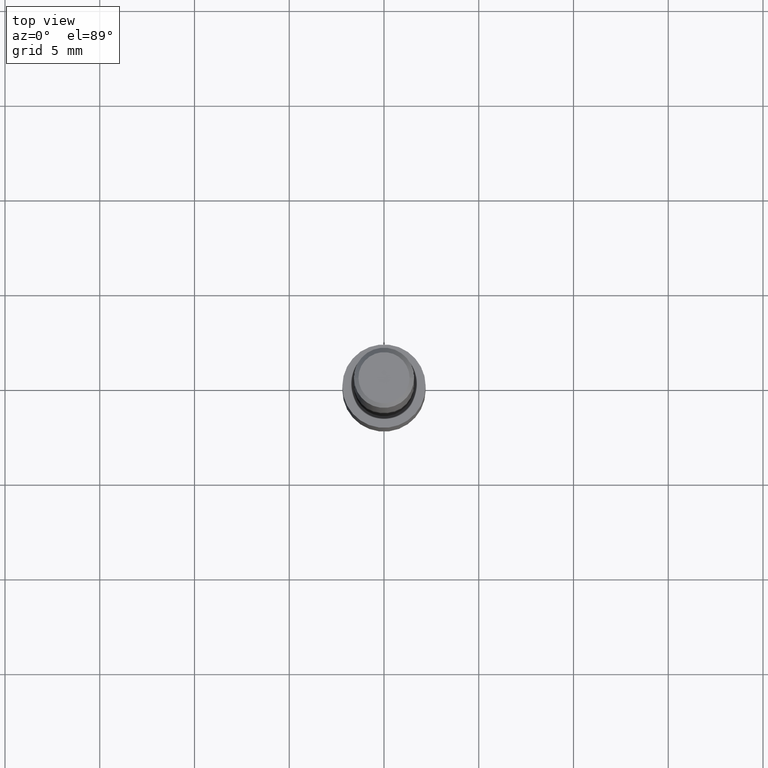
[diagram: clean part render]
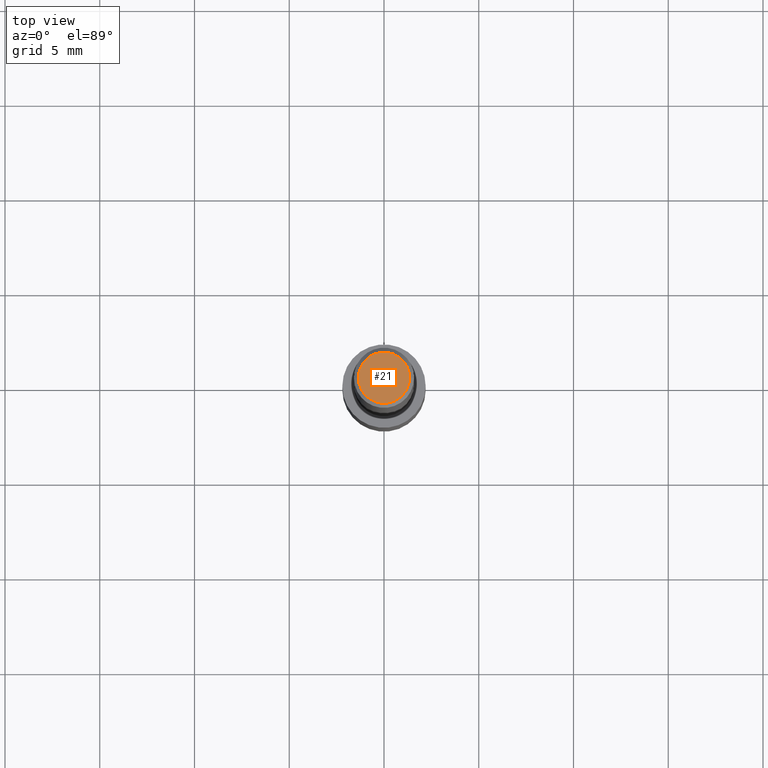
[diagram: same view with one face highlighted and labeled with its STEP entity id]
A machine part, top view. The second image highlights one B-rep face of the part: STEP entity #21.
In plain terms, the highlighted planar face has unit normal (0, -0, -1).
Its self-contained STEP definition (entity closure, byte-faithful):
#7 = EDGE_LOOP ( 'NONE', ( #31, #33 ) ) ;
#20 = CARTESIAN_POINT ( 'NONE',  ( -7.487088864773345706E-50, 1.068957861474247695E-35, 3.061616997868395197E-21 ) ) ;
#21 = ADVANCED_FACE ( 'NONE', ( #43 ), #201, .F. ) ;
#31 = ORIENTED_EDGE ( 'NONE', *, *, #213, .T. ) ;
#33 = ORIENTED_EDGE ( 'NONE', *, *, #51, .T. ) ;
#43 = FACE_OUTER_BOUND ( 'NONE', #7, .T. ) ;
#51 = EDGE_CURVE ( 'NONE', #63, #134, #61, .T. ) ;
#61 = CIRCLE ( 'NONE', #249, 0.05312499999999999861 ) ;
#62 = AXIS2_PLACEMENT_3D ( 'NONE', #127, #148, #273 ) ;
#63 = VERTEX_POINT ( 'NONE', #77 ) ;
#75 = DIRECTION ( 'NONE',  ( 1.000000000000000000, -6.982962677686266711E-15, 4.876176628004948512E-29 ) ) ;
#77 = CARTESIAN_POINT ( 'NONE',  ( 0.05312499999999999861, -4.129888592719939842E-16, 3.061617000609493422E-21 ) ) ;
#120 = CARTESIAN_POINT ( 'NONE',  ( -3.743544432386672853E-50, 5.344789307371238476E-36, 1.530808498934197599E-21 ) ) ;
#127 = CARTESIAN_POINT ( 'NONE',  ( -7.487088864773345706E-50, 1.068957861474247695E-35, 3.061616997868395197E-21 ) ) ;
#134 = VERTEX_POINT ( 'NONE', #234 ) ;
#142 = AXIS2_PLACEMENT_3D ( 'NONE', #120, #328, #147 ) ;
#147 = DIRECTION ( 'NONE',  ( -1.000000000000000000, 6.982962677686265922E-15, -4.876176775795935793E-29 ) ) ;
#148 = DIRECTION ( 'NONE',  ( -2.445468806185136597E-29, 3.491481338843145583E-15, 1.000000000000000000 ) ) ;
#172 = DIRECTION ( 'NONE',  ( -2.445468806185136597E-29, 3.491481338843145583E-15, 1.000000000000000000 ) ) ;
#201 = PLANE ( 'NONE',  #142 ) ;
#213 = EDGE_CURVE ( 'NONE', #134, #63, #301, .T. ) ;
#234 = CARTESIAN_POINT ( 'NONE',  ( -0.05312499999999999861, 3.873362110279099094E-16, 3.061616995216862494E-21 ) ) ;
#249 = AXIS2_PLACEMENT_3D ( 'NONE', #20, #172, #75 ) ;
#273 = DIRECTION ( 'NONE',  ( 1.000000000000000000, -6.982962677686266711E-15, 4.876176628004948512E-29 ) ) ;
#301 = CIRCLE ( 'NONE', #62, 0.05312499999999999861 ) ;
#328 = DIRECTION ( 'NONE',  ( 2.438088387897960049E-29, -3.491481338843145188E-15, -1.000000000000000000 ) ) ;